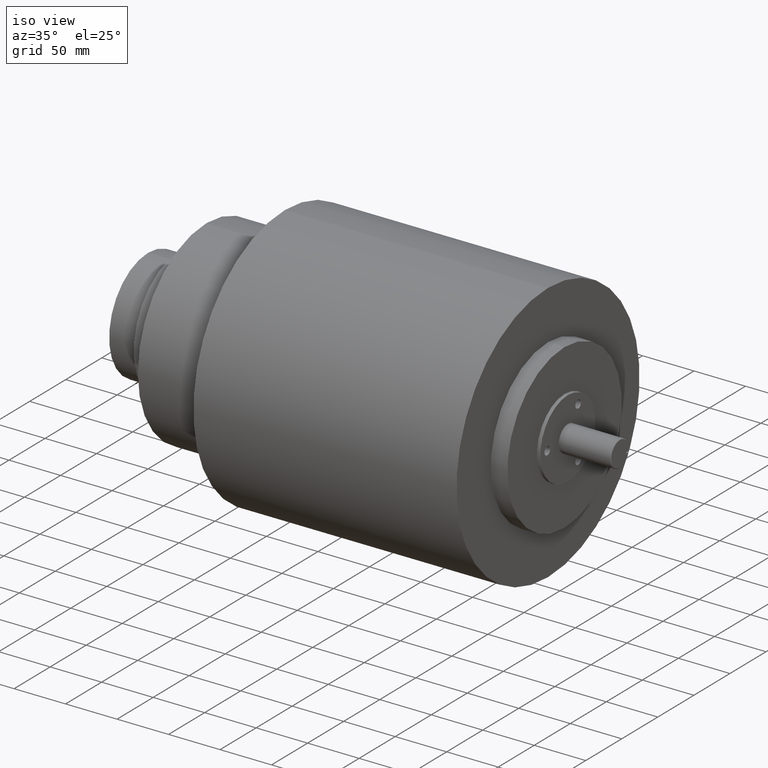
[diagram: clean part render]
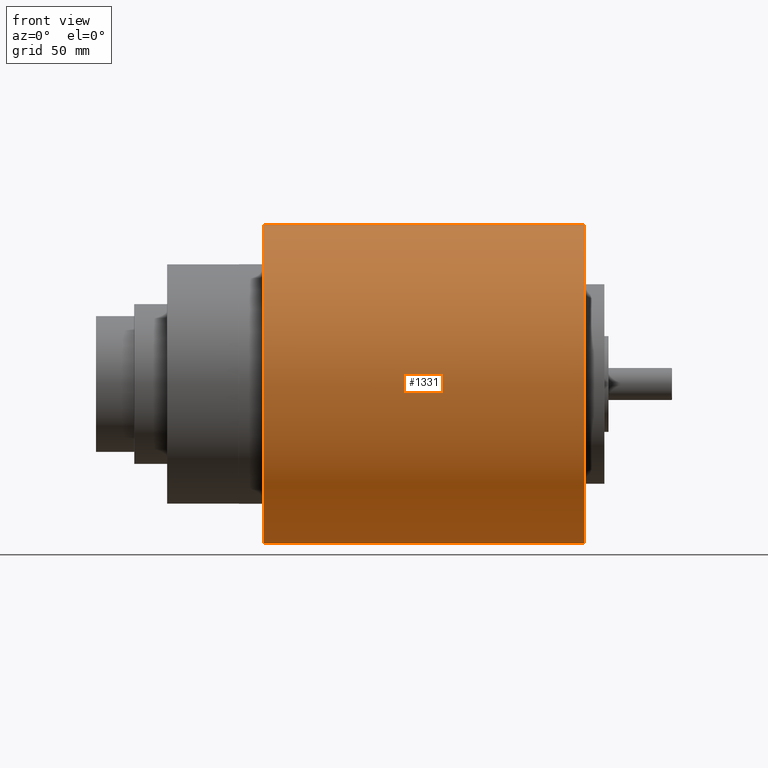
[diagram: tour spotlight — one face highlighted and labeled with its STEP entity id]
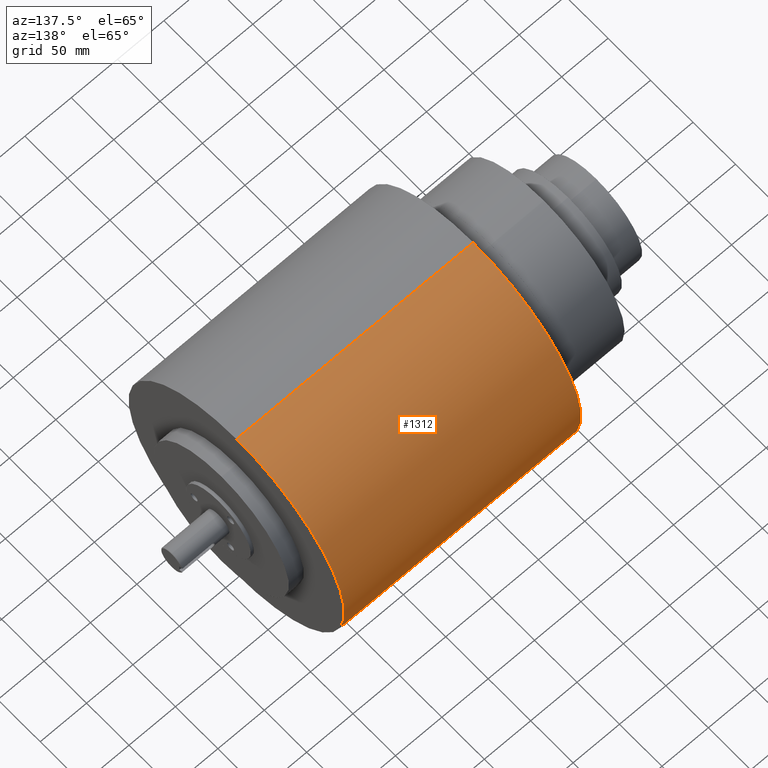
[diagram: tour spotlight — one face highlighted and labeled with its STEP entity id]
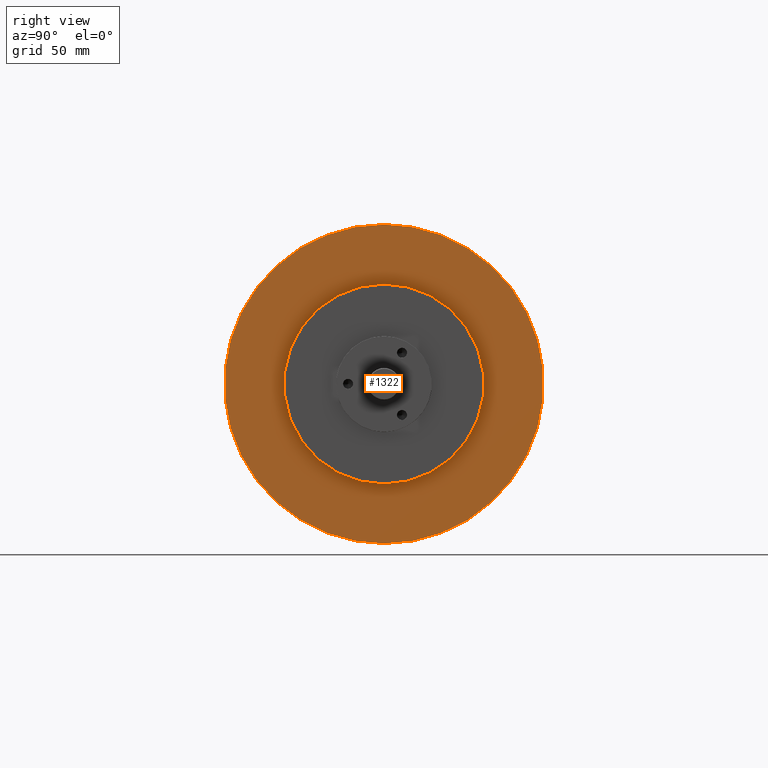
[diagram: tour spotlight — one face highlighted and labeled with its STEP entity id]
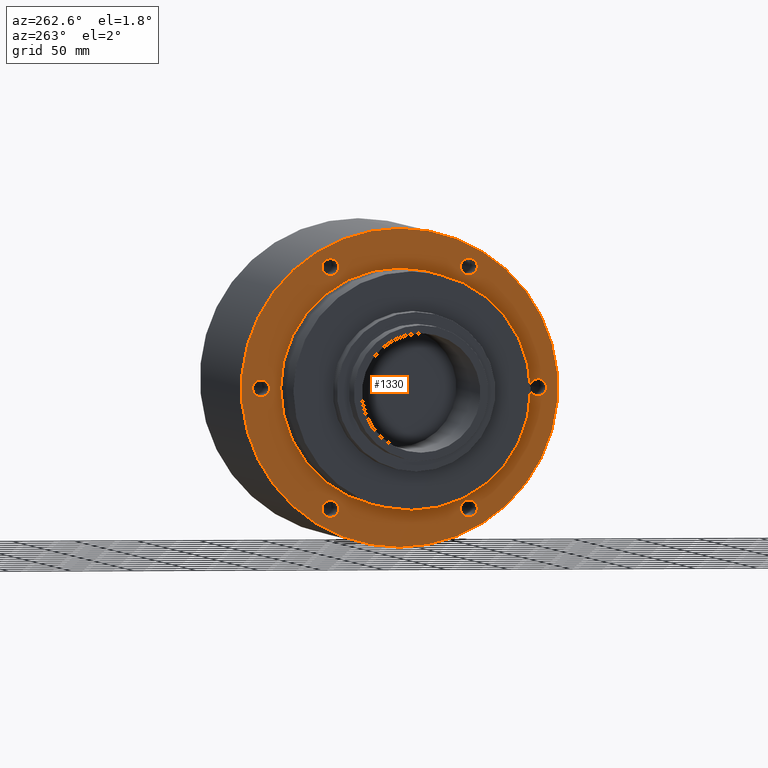
[diagram: tour spotlight — one face highlighted and labeled with its STEP entity id]
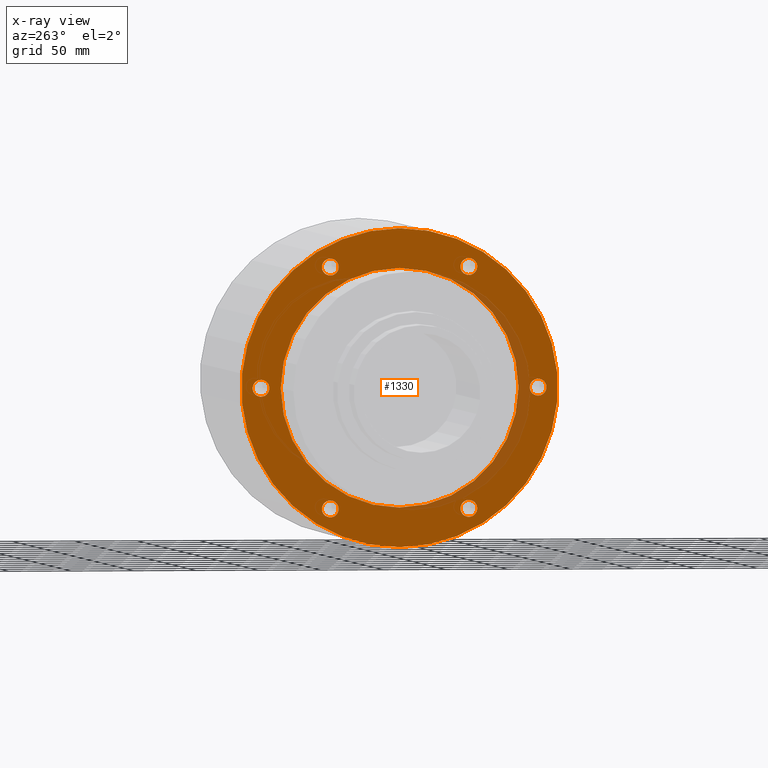
[diagram: x-ray of the same camera — body ghosted, this tour face saturated]
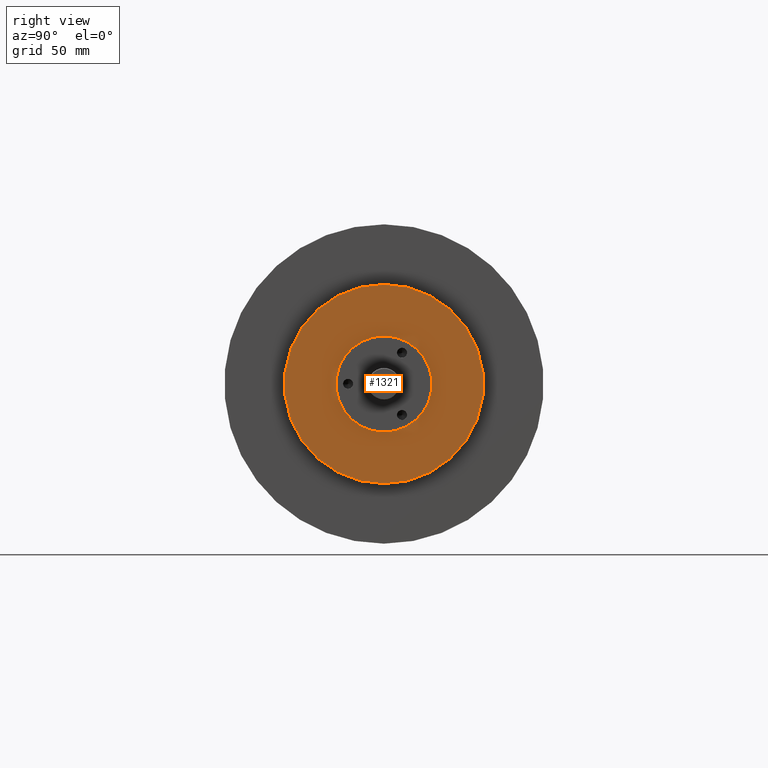
[diagram: tour spotlight — one face highlighted and labeled with its STEP entity id]
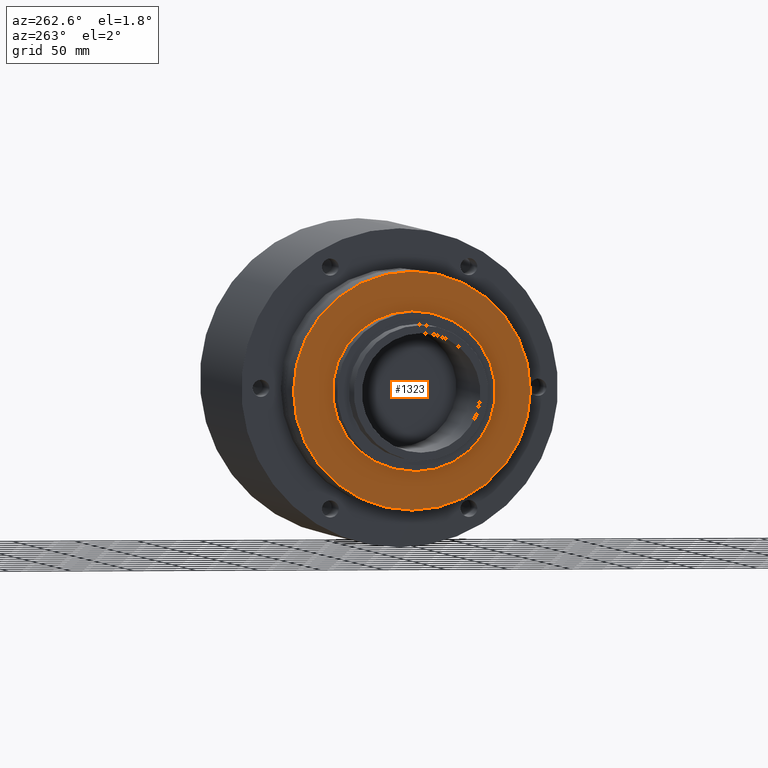
[diagram: tour spotlight — one face highlighted and labeled with its STEP entity id]
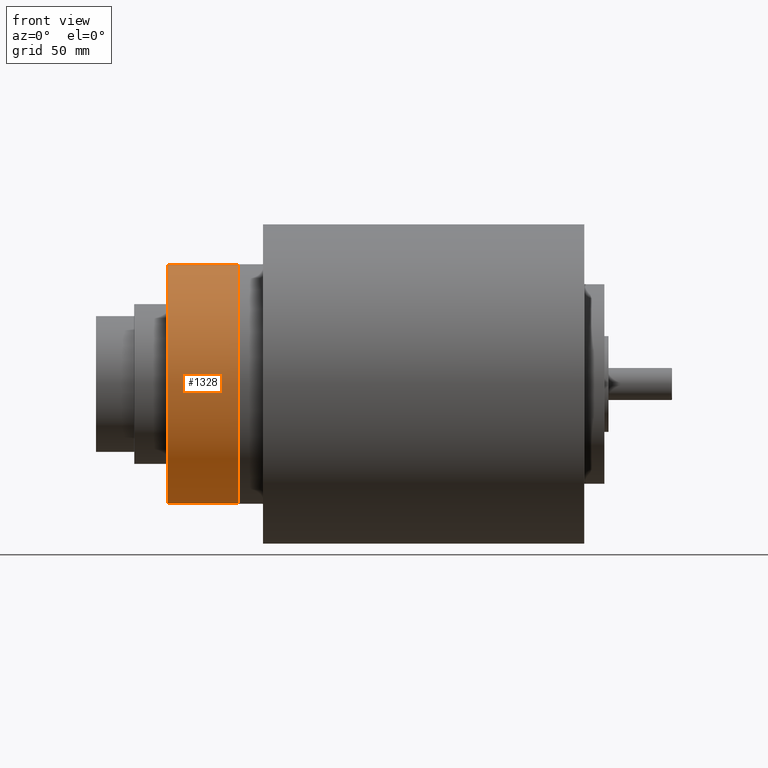
[diagram: tour spotlight — one face highlighted and labeled with its STEP entity id]
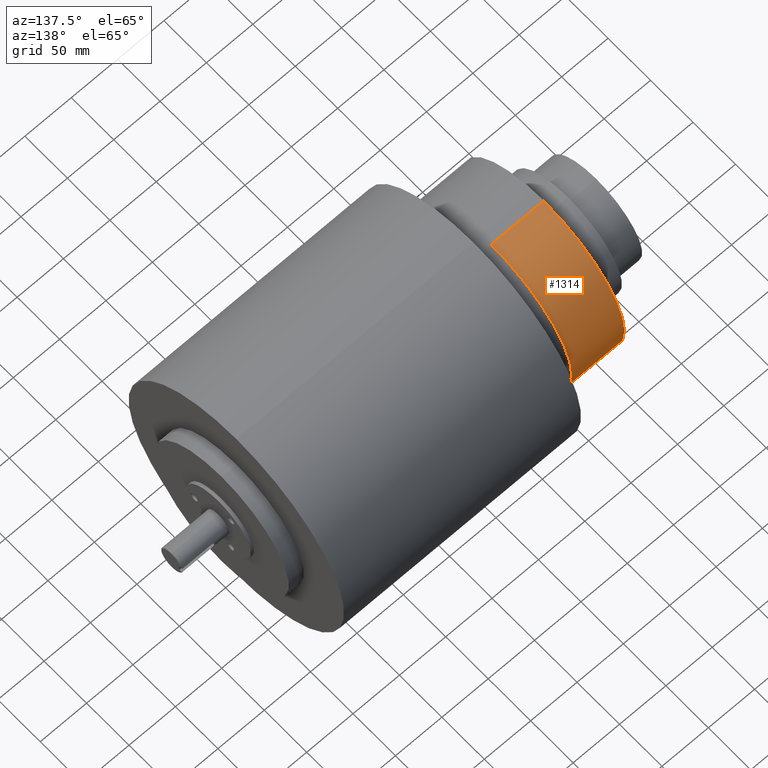
[diagram: tour spotlight — one face highlighted and labeled with its STEP entity id]
A machine part: a face-by-face anatomy tour. The part has 98 B-rep faces; the first image is the clean iso view, then the 8 largest visible faces are spotlighted one at a time (largest first), each with its STEP entity span.

Face 1 — front view, entity #1331. In plain terms, the highlighted cylindrical surface (partial cylindrical patch) has radius 127 mm, axis along (-1, -0, -0).
Definition (entity closure, byte-faithful):
#210 = FACE_OUTER_BOUND ( 'NONE', #559, .T. ) ;
#212 = CYLINDRICAL_SURFACE ( 'NONE', #2640, 5.000000000000000000 ) ;
#296 = CIRCLE ( 'NONE', #2678, 5.000000000000000000 ) ;
#366 = DIRECTION ( 'NONE',  ( 1.000000000000000000, 0.0000000000000000000, 0.0000000000000000000 ) ) ;
#371 = CARTESIAN_POINT ( 'NONE',  ( 5.235000000000000300, 0.0000000000000000000, 0.0000000000000000000 ) ) ;
#373 = DIRECTION ( 'NONE',  ( 0.0000000000000000000, 0.0000000000000000000, -1.000000000000000000 ) ) ;
#559 = EDGE_LOOP ( 'NONE', ( #1501, #1502, #1503, #1504 ) ) ;
#639 = VERTEX_POINT ( 'NONE', #757 ) ;
#640 = VERTEX_POINT ( 'NONE', #758 ) ;
#641 = VERTEX_POINT ( 'NONE', #759 ) ;
#642 = VERTEX_POINT ( 'NONE', #760 ) ;
#757 = CARTESIAN_POINT ( 'NONE',  ( 5.235000000000000300, 0.0000000000000000000, 5.000000000000000000 ) ) ;
#758 = CARTESIAN_POINT ( 'NONE',  ( 5.235000000000000300, 6.123233995736766300E-016, -5.000000000000000000 ) ) ;
#759 = CARTESIAN_POINT ( 'NONE',  ( 15.28500000000000200, 0.0000000000000000000, 5.000000000000000000 ) ) ;
#760 = CARTESIAN_POINT ( 'NONE',  ( 15.28500000000000200, 6.123233995736766300E-016, -5.000000000000000000 ) ) ;
#890 = CARTESIAN_POINT ( 'NONE',  ( 15.28500000000000200, 0.0000000000000000000, 0.0000000000000000000 ) ) ;
#893 = DIRECTION ( 'NONE',  ( -1.000000000000000000, -0.0000000000000000000, -0.0000000000000000000 ) ) ;
#894 = DIRECTION ( 'NONE',  ( 0.0000000000000000000, 0.0000000000000000000, -1.000000000000000000 ) ) ;
#997 = EDGE_CURVE ( 'NONE', #642, #641, #1690, .T. ) ;
#1113 = EDGE_CURVE ( 'NONE', #642, #640, #1846, .T. ) ;
#1118 = EDGE_CURVE ( 'NONE', #641, #639, #1855, .T. ) ;
#1203 = AXIS2_PLACEMENT_3D ( 'NONE', #890, #893, #894 ) ;
#1331 = ADVANCED_FACE ( 'NONE', ( #210 ), #212, .T. ) ;
#1501 = ORIENTED_EDGE ( 'NONE', *, *, #1113, .F. ) ;
#1502 = ORIENTED_EDGE ( 'NONE', *, *, #997, .T. ) ;
#1503 = ORIENTED_EDGE ( 'NONE', *, *, #1118, .T. ) ;
#1504 = ORIENTED_EDGE ( 'NONE', *, *, #2701, .T. ) ;
#1690 = CIRCLE ( 'NONE', #1203, 5.000000000000000000 ) ;
#1846 = LINE ( 'NONE', #2064, #1847 ) ;
#1847 = VECTOR ( 'NONE', #2065, 39.37007874015748100 ) ;
#1851 = VECTOR ( 'NONE', #2078, 39.37007874015748100 ) ;
#1855 = LINE ( 'NONE', #2069, #1851 ) ;
#2064 = CARTESIAN_POINT ( 'NONE',  ( 29.43213562373095400, 6.123233995736766300E-016, -5.000000000000000000 ) ) ;
#2065 = DIRECTION ( 'NONE',  ( -1.000000000000000000, -0.0000000000000000000, -0.0000000000000000000 ) ) ;
#2069 = CARTESIAN_POINT ( 'NONE',  ( 29.43213562373095400, 0.0000000000000000000, 5.000000000000000000 ) ) ;
#2078 = DIRECTION ( 'NONE',  ( -1.000000000000000000, -0.0000000000000000000, -0.0000000000000000000 ) ) ;
#2444 = DIRECTION ( 'NONE',  ( -1.000000000000000000, -0.0000000000000000000, -0.0000000000000000000 ) ) ;
#2447 = DIRECTION ( 'NONE',  ( 0.0000000000000000000, 0.0000000000000000000, 1.000000000000000000 ) ) ;
#2448 = CARTESIAN_POINT ( 'NONE',  ( 29.43213562373095400, 0.0000000000000000000, 0.0000000000000000000 ) ) ;
#2640 = AXIS2_PLACEMENT_3D ( 'NONE', #2448, #2444, #2447 ) ;
#2678 = AXIS2_PLACEMENT_3D ( 'NONE', #371, #366, #373 ) ;
#2701 = EDGE_CURVE ( 'NONE', #639, #640, #296, .T. ) ;

Face 2 — auxiliary view, entity #1312. In plain terms, the highlighted cylindrical surface (partial cylindrical patch) has radius 127 mm, axis along (-1, -0, -0).
Definition (entity closure, byte-faithful):
#111 = CIRCLE ( 'NONE', #2588, 5.000000000000000000 ) ;
#157 = FACE_OUTER_BOUND ( 'NONE', #503, .T. ) ;
#166 = CYLINDRICAL_SURFACE ( 'NONE', #2621, 5.000000000000000000 ) ;
#503 = EDGE_LOOP ( 'NONE', ( #1401, #1402, #1403, #1404 ) ) ;
#639 = VERTEX_POINT ( 'NONE', #757 ) ;
#640 = VERTEX_POINT ( 'NONE', #758 ) ;
#641 = VERTEX_POINT ( 'NONE', #759 ) ;
#642 = VERTEX_POINT ( 'NONE', #760 ) ;
#757 = CARTESIAN_POINT ( 'NONE',  ( 5.235000000000000300, 0.0000000000000000000, 5.000000000000000000 ) ) ;
#758 = CARTESIAN_POINT ( 'NONE',  ( 5.235000000000000300, 6.123233995736766300E-016, -5.000000000000000000 ) ) ;
#759 = CARTESIAN_POINT ( 'NONE',  ( 15.28500000000000200, 0.0000000000000000000, 5.000000000000000000 ) ) ;
#760 = CARTESIAN_POINT ( 'NONE',  ( 15.28500000000000200, 6.123233995736766300E-016, -5.000000000000000000 ) ) ;
#1113 = EDGE_CURVE ( 'NONE', #642, #640, #1846, .T. ) ;
#1118 = EDGE_CURVE ( 'NONE', #641, #639, #1855, .T. ) ;
#1174 = EDGE_CURVE ( 'NONE', #640, #639, #1927, .T. ) ;
#1188 = EDGE_CURVE ( 'NONE', #641, #642, #111, .T. ) ;
#1312 = ADVANCED_FACE ( 'NONE', ( #157 ), #166, .T. ) ;
#1401 = ORIENTED_EDGE ( 'NONE', *, *, #1188, .T. ) ;
#1402 = ORIENTED_EDGE ( 'NONE', *, *, #1113, .T. ) ;
#1403 = ORIENTED_EDGE ( 'NONE', *, *, #1174, .T. ) ;
#1404 = ORIENTED_EDGE ( 'NONE', *, *, #1118, .F. ) ;
#1846 = LINE ( 'NONE', #2064, #1847 ) ;
#1847 = VECTOR ( 'NONE', #2065, 39.37007874015748100 ) ;
#1851 = VECTOR ( 'NONE', #2078, 39.37007874015748100 ) ;
#1855 = LINE ( 'NONE', #2069, #1851 ) ;
#1927 = CIRCLE ( 'NONE', #2573, 5.000000000000000000 ) ;
#2064 = CARTESIAN_POINT ( 'NONE',  ( 29.43213562373095400, 6.123233995736766300E-016, -5.000000000000000000 ) ) ;
#2065 = DIRECTION ( 'NONE',  ( -1.000000000000000000, -0.0000000000000000000, -0.0000000000000000000 ) ) ;
#2069 = CARTESIAN_POINT ( 'NONE',  ( 29.43213562373095400, 0.0000000000000000000, 5.000000000000000000 ) ) ;
#2078 = DIRECTION ( 'NONE',  ( -1.000000000000000000, -0.0000000000000000000, -0.0000000000000000000 ) ) ;
#2253 = CARTESIAN_POINT ( 'NONE',  ( 5.235000000000000300, 0.0000000000000000000, 0.0000000000000000000 ) ) ;
#2254 = DIRECTION ( 'NONE',  ( 1.000000000000000000, 0.0000000000000000000, 0.0000000000000000000 ) ) ;
#2255 = DIRECTION ( 'NONE',  ( 0.0000000000000000000, 0.0000000000000000000, -1.000000000000000000 ) ) ;
#2295 = CARTESIAN_POINT ( 'NONE',  ( 15.28500000000000200, 0.0000000000000000000, 0.0000000000000000000 ) ) ;
#2296 = DIRECTION ( 'NONE',  ( -1.000000000000000000, -0.0000000000000000000, -0.0000000000000000000 ) ) ;
#2297 = DIRECTION ( 'NONE',  ( 0.0000000000000000000, 0.0000000000000000000, -1.000000000000000000 ) ) ;
#2383 = DIRECTION ( 'NONE',  ( 0.0000000000000000000, 0.0000000000000000000, 1.000000000000000000 ) ) ;
#2387 = DIRECTION ( 'NONE',  ( -1.000000000000000000, -0.0000000000000000000, -0.0000000000000000000 ) ) ;
#2388 = CARTESIAN_POINT ( 'NONE',  ( 29.43213562373095400, 0.0000000000000000000, 0.0000000000000000000 ) ) ;
#2573 = AXIS2_PLACEMENT_3D ( 'NONE', #2253, #2254, #2255 ) ;
#2588 = AXIS2_PLACEMENT_3D ( 'NONE', #2295, #2296, #2297 ) ;
#2621 = AXIS2_PLACEMENT_3D ( 'NONE', #2388, #2387, #2383 ) ;

Face 3 — right view, entity #1322. In plain terms, the highlighted planar face has unit normal (1, 0, 0).
Definition (entity closure, byte-faithful):
#179 = FACE_OUTER_BOUND ( 'NONE', #558, .T. ) ;
#181 = FACE_BOUND ( 'NONE', #548, .T. ) ;
#548 = EDGE_LOOP ( 'NONE', ( #1453, #1454 ) ) ;
#558 = EDGE_LOOP ( 'NONE', ( #1455, #1456 ) ) ;
#643 = VERTEX_POINT ( 'NONE', #761 ) ;
#644 = VERTEX_POINT ( 'NONE', #762 ) ;
#667 = VERTEX_POINT ( 'NONE', #785 ) ;
#668 = VERTEX_POINT ( 'NONE', #786 ) ;
#761 = CARTESIAN_POINT ( 'NONE',  ( 15.29000000000000300, 6.120172378738897400E-016, 4.995000000000001000 ) ) ;
#762 = CARTESIAN_POINT ( 'NONE',  ( 15.29000000000000300, 0.0000000000000000000, -4.995000000000001000 ) ) ;
#785 = CARTESIAN_POINT ( 'NONE',  ( 15.29000000000000300, 3.833144481331215700E-016, 3.130000000000000300 ) ) ;
#786 = CARTESIAN_POINT ( 'NONE',  ( 15.29000000000000300, 0.0000000000000000000, -3.130000000000000300 ) ) ;
#974 = CARTESIAN_POINT ( 'NONE',  ( 15.29000000000000300, 0.0000000000000000000, 0.0000000000000000000 ) ) ;
#975 = DIRECTION ( 'NONE',  ( -1.000000000000000000, -0.0000000000000000000, -0.0000000000000000000 ) ) ;
#976 = DIRECTION ( 'NONE',  ( 0.0000000000000000000, 0.0000000000000000000, -1.000000000000000000 ) ) ;
#1025 = EDGE_CURVE ( 'NONE', #668, #667, #1719, .T. ) ;
#1148 = EDGE_CURVE ( 'NONE', #667, #668, #1899, .T. ) ;
#1150 = EDGE_CURVE ( 'NONE', #643, #644, #1902, .T. ) ;
#1178 = EDGE_CURVE ( 'NONE', #644, #643, #1932, .T. ) ;
#1232 = AXIS2_PLACEMENT_3D ( 'NONE', #974, #975, #976 ) ;
#1322 = ADVANCED_FACE ( 'NONE', ( #181, #179 ), #2410, .T. ) ;
#1453 = ORIENTED_EDGE ( 'NONE', *, *, #1025, .T. ) ;
#1454 = ORIENTED_EDGE ( 'NONE', *, *, #1148, .T. ) ;
#1455 = ORIENTED_EDGE ( 'NONE', *, *, #1178, .T. ) ;
#1456 = ORIENTED_EDGE ( 'NONE', *, *, #1150, .T. ) ;
#1719 = CIRCLE ( 'NONE', #1232, 3.130000000000000300 ) ;
#1899 = CIRCLE ( 'NONE', #2556, 3.130000000000000300 ) ;
#1902 = CIRCLE ( 'NONE', #2558, 4.995000000000001000 ) ;
#1932 = CIRCLE ( 'NONE', #2577, 4.995000000000001000 ) ;
#2174 = CARTESIAN_POINT ( 'NONE',  ( 15.29000000000000300, 0.0000000000000000000, 0.0000000000000000000 ) ) ;
#2181 = CARTESIAN_POINT ( 'NONE',  ( 15.29000000000000300, 0.0000000000000000000, 0.0000000000000000000 ) ) ;
#2182 = DIRECTION ( 'NONE',  ( -1.000000000000000000, -0.0000000000000000000, -0.0000000000000000000 ) ) ;
#2183 = DIRECTION ( 'NONE',  ( 0.0000000000000000000, 0.0000000000000000000, -1.000000000000000000 ) ) ;
#2187 = DIRECTION ( 'NONE',  ( 1.000000000000000000, 0.0000000000000000000, 0.0000000000000000000 ) ) ;
#2188 = DIRECTION ( 'NONE',  ( 0.0000000000000000000, 0.0000000000000000000, -1.000000000000000000 ) ) ;
#2265 = CARTESIAN_POINT ( 'NONE',  ( 15.29000000000000300, 0.0000000000000000000, 0.0000000000000000000 ) ) ;
#2266 = DIRECTION ( 'NONE',  ( 1.000000000000000000, 0.0000000000000000000, 0.0000000000000000000 ) ) ;
#2267 = DIRECTION ( 'NONE',  ( 0.0000000000000000000, 0.0000000000000000000, -1.000000000000000000 ) ) ;
#2410 = PLANE ( 'NONE',  #2631 ) ;
#2417 = CARTESIAN_POINT ( 'NONE',  ( 15.29000000000000300, 0.0000000000000000000, 0.0000000000000000000 ) ) ;
#2423 = DIRECTION ( 'NONE',  ( 1.000000000000000000, 0.0000000000000000000, 0.0000000000000000000 ) ) ;
#2424 = DIRECTION ( 'NONE',  ( 0.0000000000000000000, 0.0000000000000000000, -1.000000000000000000 ) ) ;
#2556 = AXIS2_PLACEMENT_3D ( 'NONE', #2174, #2182, #2183 ) ;
#2558 = AXIS2_PLACEMENT_3D ( 'NONE', #2181, #2187, #2188 ) ;
#2577 = AXIS2_PLACEMENT_3D ( 'NONE', #2265, #2266, #2267 ) ;
#2631 = AXIS2_PLACEMENT_3D ( 'NONE', #2417, #2423, #2424 ) ;

Face 4 — auxiliary view, entity #1330. An x-ray twin of the same camera follows (body ghosted, this face saturated) — the face is partly hidden behind the body. In plain terms, the highlighted planar face has unit normal (1, 0, 0).
Definition (entity closure, byte-faithful):
#8 = CARTESIAN_POINT ( 'NONE',  ( 5.230000000000000400, -2.187500000000044400, 3.788861141556893600 ) ) ;
#101 = CIRCLE ( 'NONE', #2579, 3.755000000000000300 ) ;
#106 = CIRCLE ( 'NONE', #2583, 4.995000000000001000 ) ;
#188 = FACE_BOUND ( 'NONE', #575, .T. ) ;
#189 = FACE_OUTER_BOUND ( 'NONE', #564, .T. ) ;
#199 = FACE_BOUND ( 'NONE', #574, .T. ) ;
#203 = FACE_BOUND ( 'NONE', #571, .T. ) ;
#204 = FACE_BOUND ( 'NONE', #576, .T. ) ;
#205 = FACE_BOUND ( 'NONE', #572, .T. ) ;
#206 = FACE_BOUND ( 'NONE', #577, .T. ) ;
#207 = FACE_BOUND ( 'NONE', #573, .T. ) ;
#400 = DIRECTION ( 'NONE',  ( 0.0000000000000000000, 0.0000000000000000000, 1.000000000000000000 ) ) ;
#401 = DIRECTION ( 'NONE',  ( -1.000000000000000000, -0.0000000000000000000, -0.0000000000000000000 ) ) ;
#564 = EDGE_LOOP ( 'NONE', ( #1485, #1486 ) ) ;
#571 = EDGE_LOOP ( 'NONE', ( #1487, #1488 ) ) ;
#572 = EDGE_LOOP ( 'NONE', ( #1489, #1490 ) ) ;
#573 = EDGE_LOOP ( 'NONE', ( #1491, #1492 ) ) ;
#574 = EDGE_LOOP ( 'NONE', ( #1493, #1494 ) ) ;
#575 = EDGE_LOOP ( 'NONE', ( #1495, #1496 ) ) ;
#576 = EDGE_LOOP ( 'NONE', ( #1497, #1498 ) ) ;
#577 = EDGE_LOOP ( 'NONE', ( #1499, #1500 ) ) ;
#633 = VERTEX_POINT ( 'NONE', #751 ) ;
#634 = VERTEX_POINT ( 'NONE', #752 ) ;
#637 = VERTEX_POINT ( 'NONE', #755 ) ;
#638 = VERTEX_POINT ( 'NONE', #756 ) ;
#694 = VERTEX_POINT ( 'NONE', #812 ) ;
#695 = VERTEX_POINT ( 'NONE', #813 ) ;
#699 = VERTEX_POINT ( 'NONE', #817 ) ;
#700 = VERTEX_POINT ( 'NONE', #818 ) ;
#704 = VERTEX_POINT ( 'NONE', #822 ) ;
#705 = VERTEX_POINT ( 'NONE', #823 ) ;
#709 = VERTEX_POINT ( 'NONE', #827 ) ;
#710 = VERTEX_POINT ( 'NONE', #828 ) ;
#714 = VERTEX_POINT ( 'NONE', #832 ) ;
#715 = VERTEX_POINT ( 'NONE', #833 ) ;
#719 = VERTEX_POINT ( 'NONE', #837 ) ;
#720 = VERTEX_POINT ( 'NONE', #838 ) ;
#751 = CARTESIAN_POINT ( 'NONE',  ( 5.230000000000000400, 4.598548730798311800E-016, 3.755000000000000300 ) ) ;
#752 = CARTESIAN_POINT ( 'NONE',  ( 5.230000000000000400, 0.0000000000000000000, -3.755000000000000300 ) ) ;
#755 = CARTESIAN_POINT ( 'NONE',  ( 5.230000000000000400, 6.120172378738897400E-016, 4.995000000000001000 ) ) ;
#756 = CARTESIAN_POINT ( 'NONE',  ( 5.230000000000000400, 0.0000000000000000000, -4.995000000000001000 ) ) ;
#812 = CARTESIAN_POINT ( 'NONE',  ( 5.230000000000000400, -2.187500000000044400, 3.523261141556893500 ) ) ;
#813 = CARTESIAN_POINT ( 'NONE',  ( 5.230000000000000400, -2.187500000000044400, 4.054461141556894100 ) ) ;
#817 = CARTESIAN_POINT ( 'NONE',  ( 5.230000000000000400, 2.187499999999964900, 3.523261141556939700 ) ) ;
#818 = CARTESIAN_POINT ( 'NONE',  ( 5.230000000000000400, 2.187499999999964900, 4.054461141556939400 ) ) ;
#822 = CARTESIAN_POINT ( 'NONE',  ( 5.230000000000000400, 4.375000000000000000, -0.2656000000000000600 ) ) ;
#823 = CARTESIAN_POINT ( 'NONE',  ( 5.230000000000000400, 4.375000000000000000, 0.2656000000000000000 ) ) ;
#827 = CARTESIAN_POINT ( 'NONE',  ( 5.230000000000000400, 2.187500000000018200, -4.054461141556909200 ) ) ;
#828 = CARTESIAN_POINT ( 'NONE',  ( 5.230000000000000400, 2.187500000000018200, -3.523261141556909500 ) ) ;
#832 = CARTESIAN_POINT ( 'NONE',  ( 5.230000000000000400, -2.187499999999991600, -4.054461141556924300 ) ) ;
#833 = CARTESIAN_POINT ( 'NONE',  ( 5.230000000000000400, -2.187499999999991600, -3.523261141556924200 ) ) ;
#837 = CARTESIAN_POINT ( 'NONE',  ( 5.230000000000000400, -4.375000000000000000, -0.2656000000000000600 ) ) ;
#838 = CARTESIAN_POINT ( 'NONE',  ( 5.230000000000000400, -4.375000000000000000, 0.2656000000000000000 ) ) ;
#898 = CARTESIAN_POINT ( 'NONE',  ( 5.230000000000000400, -4.375000000000000000, 0.0000000000000000000 ) ) ;
#899 = DIRECTION ( 'NONE',  ( -1.000000000000000000, -0.0000000000000000000, -0.0000000000000000000 ) ) ;
#900 = DIRECTION ( 'NONE',  ( 0.0000000000000000000, 0.0000000000000000000, 1.000000000000000000 ) ) ;
#904 = CARTESIAN_POINT ( 'NONE',  ( 5.230000000000000400, -2.187499999999991600, -3.788861141556924200 ) ) ;
#905 = DIRECTION ( 'NONE',  ( -1.000000000000000000, -0.0000000000000000000, -0.0000000000000000000 ) ) ;
#906 = DIRECTION ( 'NONE',  ( 0.0000000000000000000, 0.0000000000000000000, 1.000000000000000000 ) ) ;
#907 = CARTESIAN_POINT ( 'NONE',  ( 5.230000000000000400, 4.375000000000000000, 0.0000000000000000000 ) ) ;
#908 = DIRECTION ( 'NONE',  ( -1.000000000000000000, -0.0000000000000000000, -0.0000000000000000000 ) ) ;
#909 = DIRECTION ( 'NONE',  ( 0.0000000000000000000, 0.0000000000000000000, 1.000000000000000000 ) ) ;
#913 = CARTESIAN_POINT ( 'NONE',  ( 5.230000000000000400, 2.187500000000018200, -3.788861141556909600 ) ) ;
#914 = DIRECTION ( 'NONE',  ( -1.000000000000000000, -0.0000000000000000000, -0.0000000000000000000 ) ) ;
#915 = DIRECTION ( 'NONE',  ( 0.0000000000000000000, 0.0000000000000000000, 1.000000000000000000 ) ) ;
#916 = CARTESIAN_POINT ( 'NONE',  ( 5.230000000000000400, 0.0000000000000000000, 0.0000000000000000000 ) ) ;
#919 = DIRECTION ( 'NONE',  ( 1.000000000000000000, 0.0000000000000000000, 0.0000000000000000000 ) ) ;
#920 = DIRECTION ( 'NONE',  ( 0.0000000000000000000, 0.0000000000000000000, -1.000000000000000000 ) ) ;
#924 = CARTESIAN_POINT ( 'NONE',  ( 5.230000000000000400, -2.187500000000044400, 3.788861141556893600 ) ) ;
#925 = DIRECTION ( 'NONE',  ( -1.000000000000000000, -0.0000000000000000000, -0.0000000000000000000 ) ) ;
#926 = DIRECTION ( 'NONE',  ( 0.0000000000000000000, 0.0000000000000000000, 1.000000000000000000 ) ) ;
#930 = CARTESIAN_POINT ( 'NONE',  ( 5.230000000000000400, 2.187499999999964900, 3.788861141556939800 ) ) ;
#931 = DIRECTION ( 'NONE',  ( -1.000000000000000000, -0.0000000000000000000, -0.0000000000000000000 ) ) ;
#932 = DIRECTION ( 'NONE',  ( 0.0000000000000000000, 0.0000000000000000000, 1.000000000000000000 ) ) ;
#936 = CARTESIAN_POINT ( 'NONE',  ( 5.230000000000000400, 0.0000000000000000000, 0.0000000000000000000 ) ) ;
#937 = DIRECTION ( 'NONE',  ( -1.000000000000000000, -0.0000000000000000000, -0.0000000000000000000 ) ) ;
#938 = DIRECTION ( 'NONE',  ( 0.0000000000000000000, 0.0000000000000000000, -1.000000000000000000 ) ) ;
#999 = EDGE_CURVE ( 'NONE', #720, #719, #1692, .T. ) ;
#1001 = EDGE_CURVE ( 'NONE', #715, #714, #1694, .T. ) ;
#1002 = EDGE_CURVE ( 'NONE', #705, #704, #1695, .T. ) ;
#1004 = EDGE_CURVE ( 'NONE', #710, #709, #1698, .T. ) ;
#1006 = EDGE_CURVE ( 'NONE', #634, #633, #1699, .T. ) ;
#1008 = EDGE_CURVE ( 'NONE', #695, #694, #1701, .T. ) ;
#1010 = EDGE_CURVE ( 'NONE', #700, #699, #1703, .T. ) ;
#1012 = EDGE_CURVE ( 'NONE', #638, #637, #1705, .T. ) ;
#1057 = EDGE_CURVE ( 'NONE', #694, #695, #1761, .T. ) ;
#1064 = EDGE_CURVE ( 'NONE', #709, #710, #1773, .T. ) ;
#1069 = EDGE_CURVE ( 'NONE', #704, #705, #1782, .T. ) ;
#1071 = EDGE_CURVE ( 'NONE', #699, #700, #1785, .T. ) ;
#1088 = EDGE_CURVE ( 'NONE', #714, #715, #1812, .T. ) ;
#1154 = EDGE_CURVE ( 'NONE', #719, #720, #1907, .T. ) ;
#1180 = EDGE_CURVE ( 'NONE', #633, #634, #101, .T. ) ;
#1184 = EDGE_CURVE ( 'NONE', #637, #638, #106, .T. ) ;
#1210 = AXIS2_PLACEMENT_3D ( 'NONE', #898, #899, #900 ) ;
#1212 = AXIS2_PLACEMENT_3D ( 'NONE', #904, #905, #906 ) ;
#1213 = AXIS2_PLACEMENT_3D ( 'NONE', #907, #908, #909 ) ;
#1215 = AXIS2_PLACEMENT_3D ( 'NONE', #913, #914, #915 ) ;
#1216 = AXIS2_PLACEMENT_3D ( 'NONE', #924, #925, #926 ) ;
#1218 = AXIS2_PLACEMENT_3D ( 'NONE', #916, #919, #920 ) ;
#1220 = AXIS2_PLACEMENT_3D ( 'NONE', #930, #931, #932 ) ;
#1222 = AXIS2_PLACEMENT_3D ( 'NONE', #936, #937, #938 ) ;
#1259 = AXIS2_PLACEMENT_3D ( 'NONE', #8, #401, #400 ) ;
#1262 = AXIS2_PLACEMENT_3D ( 'NONE', #1938, #1944, #1945 ) ;
#1264 = AXIS2_PLACEMENT_3D ( 'NONE', #1948, #1957, #1958 ) ;
#1265 = AXIS2_PLACEMENT_3D ( 'NONE', #1951, #1961, #1962 ) ;
#1268 = AXIS2_PLACEMENT_3D ( 'NONE', #1993, #2001, #2002 ) ;
#1330 = ADVANCED_FACE ( 'NONE', ( #189, #203, #205, #207, #199, #188, #204, #206 ), #2450, .F. ) ;
#1485 = ORIENTED_EDGE ( 'NONE', *, *, #1012, .T. ) ;
#1486 = ORIENTED_EDGE ( 'NONE', *, *, #1184, .T. ) ;
#1487 = ORIENTED_EDGE ( 'NONE', *, *, #1006, .T. ) ;
#1488 = ORIENTED_EDGE ( 'NONE', *, *, #1180, .T. ) ;
#1489 = ORIENTED_EDGE ( 'NONE', *, *, #1008, .F. ) ;
#1490 = ORIENTED_EDGE ( 'NONE', *, *, #1057, .F. ) ;
#1491 = ORIENTED_EDGE ( 'NONE', *, *, #1010, .F. ) ;
#1492 = ORIENTED_EDGE ( 'NONE', *, *, #1071, .F. ) ;
#1493 = ORIENTED_EDGE ( 'NONE', *, *, #1002, .F. ) ;
#1494 = ORIENTED_EDGE ( 'NONE', *, *, #1069, .F. ) ;
#1495 = ORIENTED_EDGE ( 'NONE', *, *, #1004, .F. ) ;
#1496 = ORIENTED_EDGE ( 'NONE', *, *, #1064, .F. ) ;
#1497 = ORIENTED_EDGE ( 'NONE', *, *, #1001, .F. ) ;
#1498 = ORIENTED_EDGE ( 'NONE', *, *, #1088, .F. ) ;
#1499 = ORIENTED_EDGE ( 'NONE', *, *, #999, .F. ) ;
#1500 = ORIENTED_EDGE ( 'NONE', *, *, #1154, .F. ) ;
#1692 = CIRCLE ( 'NONE', #1210, 0.2656000000000000000 ) ;
#1694 = CIRCLE ( 'NONE', #1212, 0.2656000000000000000 ) ;
#1695 = CIRCLE ( 'NONE', #1213, 0.2656000000000000000 ) ;
#1698 = CIRCLE ( 'NONE', #1215, 0.2656000000000000000 ) ;
#1699 = CIRCLE ( 'NONE', #1218, 3.755000000000000300 ) ;
#1701 = CIRCLE ( 'NONE', #1216, 0.2656000000000000000 ) ;
#1703 = CIRCLE ( 'NONE', #1220, 0.2655999999999995000 ) ;
#1705 = CIRCLE ( 'NONE', #1222, 4.995000000000001000 ) ;
#1761 = CIRCLE ( 'NONE', #1259, 0.2656000000000000000 ) ;
#1773 = CIRCLE ( 'NONE', #1262, 0.2656000000000000000 ) ;
#1782 = CIRCLE ( 'NONE', #1264, 0.2656000000000000000 ) ;
#1785 = CIRCLE ( 'NONE', #1265, 0.2655999999999995000 ) ;
#1812 = CIRCLE ( 'NONE', #1268, 0.2656000000000000000 ) ;
#1907 = CIRCLE ( 'NONE', #2560, 0.2656000000000000000 ) ;
#1938 = CARTESIAN_POINT ( 'NONE',  ( 5.230000000000000400, 2.187500000000018200, -3.788861141556909600 ) ) ;
#1944 = DIRECTION ( 'NONE',  ( -1.000000000000000000, -0.0000000000000000000, -0.0000000000000000000 ) ) ;
#1945 = DIRECTION ( 'NONE',  ( 0.0000000000000000000, 0.0000000000000000000, 1.000000000000000000 ) ) ;
#1948 = CARTESIAN_POINT ( 'NONE',  ( 5.230000000000000400, 4.375000000000000000, 0.0000000000000000000 ) ) ;
#1951 = CARTESIAN_POINT ( 'NONE',  ( 5.230000000000000400, 2.187499999999964900, 3.788861141556939800 ) ) ;
#1957 = DIRECTION ( 'NONE',  ( -1.000000000000000000, -0.0000000000000000000, -0.0000000000000000000 ) ) ;
#1958 = DIRECTION ( 'NONE',  ( 0.0000000000000000000, 0.0000000000000000000, 1.000000000000000000 ) ) ;
#1961 = DIRECTION ( 'NONE',  ( -1.000000000000000000, -0.0000000000000000000, -0.0000000000000000000 ) ) ;
#1962 = DIRECTION ( 'NONE',  ( 0.0000000000000000000, 0.0000000000000000000, 1.000000000000000000 ) ) ;
#1993 = CARTESIAN_POINT ( 'NONE',  ( 5.230000000000000400, -2.187499999999991600, -3.788861141556924200 ) ) ;
#2001 = DIRECTION ( 'NONE',  ( -1.000000000000000000, -0.0000000000000000000, -0.0000000000000000000 ) ) ;
#2002 = DIRECTION ( 'NONE',  ( 0.0000000000000000000, 0.0000000000000000000, 1.000000000000000000 ) ) ;
#2186 = CARTESIAN_POINT ( 'NONE',  ( 5.230000000000000400, -4.375000000000000000, 0.0000000000000000000 ) ) ;
#2197 = DIRECTION ( 'NONE',  ( -1.000000000000000000, -0.0000000000000000000, -0.0000000000000000000 ) ) ;
#2198 = DIRECTION ( 'NONE',  ( 0.0000000000000000000, 0.0000000000000000000, 1.000000000000000000 ) ) ;
#2271 = CARTESIAN_POINT ( 'NONE',  ( 5.230000000000000400, 0.0000000000000000000, 0.0000000000000000000 ) ) ;
#2272 = DIRECTION ( 'NONE',  ( 1.000000000000000000, 0.0000000000000000000, 0.0000000000000000000 ) ) ;
#2273 = DIRECTION ( 'NONE',  ( 0.0000000000000000000, 0.0000000000000000000, -1.000000000000000000 ) ) ;
#2283 = CARTESIAN_POINT ( 'NONE',  ( 5.230000000000000400, 0.0000000000000000000, 0.0000000000000000000 ) ) ;
#2284 = DIRECTION ( 'NONE',  ( -1.000000000000000000, -0.0000000000000000000, -0.0000000000000000000 ) ) ;
#2285 = DIRECTION ( 'NONE',  ( 0.0000000000000000000, 0.0000000000000000000, -1.000000000000000000 ) ) ;
#2449 = CARTESIAN_POINT ( 'NONE',  ( 5.230000000000000400, 0.0000000000000000000, 0.0000000000000000000 ) ) ;
#2450 = PLANE ( 'NONE',  #2639 ) ;
#2451 = DIRECTION ( 'NONE',  ( 1.000000000000000000, 0.0000000000000000000, 0.0000000000000000000 ) ) ;
#2452 = DIRECTION ( 'NONE',  ( 0.0000000000000000000, 0.0000000000000000000, -1.000000000000000000 ) ) ;
#2560 = AXIS2_PLACEMENT_3D ( 'NONE', #2186, #2197, #2198 ) ;
#2579 = AXIS2_PLACEMENT_3D ( 'NONE', #2271, #2272, #2273 ) ;
#2583 = AXIS2_PLACEMENT_3D ( 'NONE', #2283, #2284, #2285 ) ;
#2639 = AXIS2_PLACEMENT_3D ( 'NONE', #2449, #2451, #2452 ) ;

Face 5 — right view, entity #1321. In plain terms, the highlighted planar face has unit normal (1, 0, 0).
Definition (entity closure, byte-faithful):
#79 = DIRECTION ( 'NONE',  ( 0.0000000000000000000, 0.0000000000000000000, -1.000000000000000000 ) ) ;
#80 = DIRECTION ( 'NONE',  ( -1.000000000000000000, -0.0000000000000000000, -0.0000000000000000000 ) ) ;
#81 = CARTESIAN_POINT ( 'NONE',  ( 15.92000000000000300, 0.0000000000000000000, 0.0000000000000000000 ) ) ;
#91 = CARTESIAN_POINT ( 'NONE',  ( 15.92000000000000300, 0.0000000000000000000, 0.0000000000000000000 ) ) ;
#92 = DIRECTION ( 'NONE',  ( 1.000000000000000000, 0.0000000000000000000, 0.0000000000000000000 ) ) ;
#93 = DIRECTION ( 'NONE',  ( 0.0000000000000000000, 0.0000000000000000000, -1.000000000000000000 ) ) ;
#183 = FACE_OUTER_BOUND ( 'NONE', #556, .T. ) ;
#185 = FACE_BOUND ( 'NONE', #547, .T. ) ;
#547 = EDGE_LOOP ( 'NONE', ( #1449, #1450 ) ) ;
#556 = EDGE_LOOP ( 'NONE', ( #1451, #1452 ) ) ;
#671 = VERTEX_POINT ( 'NONE', #789 ) ;
#672 = VERTEX_POINT ( 'NONE', #790 ) ;
#675 = VERTEX_POINT ( 'NONE', #793 ) ;
#676 = VERTEX_POINT ( 'NONE', #794 ) ;
#789 = CARTESIAN_POINT ( 'NONE',  ( 15.92000000000000300, 3.823959630337610400E-016, 3.120000000000000100 ) ) ;
#790 = CARTESIAN_POINT ( 'NONE',  ( 15.92000000000000300, 0.0000000000000000000, -3.120000000000000100 ) ) ;
#793 = CARTESIAN_POINT ( 'NONE',  ( 15.92000000000000300, 1.843093432716766800E-016, 1.505000000000000100 ) ) ;
#794 = CARTESIAN_POINT ( 'NONE',  ( 15.92000000000000300, 0.0000000000000000000, -1.505000000000000100 ) ) ;
#1029 = EDGE_CURVE ( 'NONE', #672, #671, #1723, .T. ) ;
#1034 = EDGE_CURVE ( 'NONE', #676, #675, #1729, .T. ) ;
#1147 = EDGE_CURVE ( 'NONE', #675, #676, #1897, .T. ) ;
#1149 = EDGE_CURVE ( 'NONE', #671, #672, #1901, .T. ) ;
#1238 = AXIS2_PLACEMENT_3D ( 'NONE', #91, #92, #93 ) ;
#1243 = AXIS2_PLACEMENT_3D ( 'NONE', #81, #80, #79 ) ;
#1321 = ADVANCED_FACE ( 'NONE', ( #185, #183 ), #2414, .T. ) ;
#1449 = ORIENTED_EDGE ( 'NONE', *, *, #1034, .T. ) ;
#1450 = ORIENTED_EDGE ( 'NONE', *, *, #1147, .T. ) ;
#1451 = ORIENTED_EDGE ( 'NONE', *, *, #1029, .T. ) ;
#1452 = ORIENTED_EDGE ( 'NONE', *, *, #1149, .T. ) ;
#1723 = CIRCLE ( 'NONE', #1238, 3.120000000000000100 ) ;
#1729 = CIRCLE ( 'NONE', #1243, 1.505000000000000100 ) ;
#1897 = CIRCLE ( 'NONE', #2550, 1.505000000000000100 ) ;
#1901 = CIRCLE ( 'NONE', #2557, 3.120000000000000100 ) ;
#2177 = CARTESIAN_POINT ( 'NONE',  ( 15.92000000000000300, 0.0000000000000000000, 0.0000000000000000000 ) ) ;
#2178 = CARTESIAN_POINT ( 'NONE',  ( 15.92000000000000300, 0.0000000000000000000, 0.0000000000000000000 ) ) ;
#2179 = DIRECTION ( 'NONE',  ( -1.000000000000000000, -0.0000000000000000000, -0.0000000000000000000 ) ) ;
#2180 = DIRECTION ( 'NONE',  ( 0.0000000000000000000, 0.0000000000000000000, -1.000000000000000000 ) ) ;
#2184 = DIRECTION ( 'NONE',  ( 1.000000000000000000, 0.0000000000000000000, 0.0000000000000000000 ) ) ;
#2185 = DIRECTION ( 'NONE',  ( 0.0000000000000000000, 0.0000000000000000000, -1.000000000000000000 ) ) ;
#2407 = CARTESIAN_POINT ( 'NONE',  ( 15.92000000000000300, 0.0000000000000000000, 0.0000000000000000000 ) ) ;
#2414 = PLANE ( 'NONE',  #2630 ) ;
#2419 = DIRECTION ( 'NONE',  ( 1.000000000000000000, 0.0000000000000000000, 0.0000000000000000000 ) ) ;
#2420 = DIRECTION ( 'NONE',  ( 0.0000000000000000000, 0.0000000000000000000, -1.000000000000000000 ) ) ;
#2550 = AXIS2_PLACEMENT_3D ( 'NONE', #2177, #2179, #2180 ) ;
#2557 = AXIS2_PLACEMENT_3D ( 'NONE', #2178, #2184, #2185 ) ;
#2630 = AXIS2_PLACEMENT_3D ( 'NONE', #2407, #2419, #2420 ) ;

Face 6 — auxiliary view, entity #1323. In plain terms, the highlighted planar face has unit normal (1, 0, 0).
Definition (entity closure, byte-faithful):
#94 = CARTESIAN_POINT ( 'NONE',  ( 2.230000000000000000, 0.0000000000000000000, 0.0000000000000000000 ) ) ;
#96 = DIRECTION ( 'NONE',  ( -1.000000000000000000, -0.0000000000000000000, -0.0000000000000000000 ) ) ;
#97 = DIRECTION ( 'NONE',  ( 0.0000000000000000000, 0.0000000000000000000, -1.000000000000000000 ) ) ;
#177 = FACE_OUTER_BOUND ( 'NONE', #557, .T. ) ;
#186 = FACE_BOUND ( 'NONE', #561, .T. ) ;
#557 = EDGE_LOOP ( 'NONE', ( #1457, #1458 ) ) ;
#561 = EDGE_LOOP ( 'NONE', ( #1459, #1460 ) ) ;
#629 = VERTEX_POINT ( 'NONE', #747 ) ;
#630 = VERTEX_POINT ( 'NONE', #748 ) ;
#661 = VERTEX_POINT ( 'NONE', #779 ) ;
#662 = VERTEX_POINT ( 'NONE', #780 ) ;
#747 = CARTESIAN_POINT ( 'NONE',  ( 2.229999999999999500, 3.067740231864120000E-016, 2.505000000000000300 ) ) ;
#748 = CARTESIAN_POINT ( 'NONE',  ( 2.229999999999999500, 0.0000000000000000000, -2.505000000000000300 ) ) ;
#779 = CARTESIAN_POINT ( 'NONE',  ( 2.230000000000000000, 4.583240645808969200E-016, 3.740000000000000200 ) ) ;
#780 = CARTESIAN_POINT ( 'NONE',  ( 2.230000000000000000, 0.0000000000000000000, -3.740000000000000200 ) ) ;
#954 = CARTESIAN_POINT ( 'NONE',  ( 2.230000000000000000, 0.0000000000000000000, 0.0000000000000000000 ) ) ;
#955 = DIRECTION ( 'NONE',  ( -1.000000000000000000, -0.0000000000000000000, -0.0000000000000000000 ) ) ;
#956 = DIRECTION ( 'NONE',  ( 0.0000000000000000000, 0.0000000000000000000, -1.000000000000000000 ) ) ;
#960 = CARTESIAN_POINT ( 'NONE',  ( 2.230000000000000000, 0.0000000000000000000, 0.0000000000000000000 ) ) ;
#961 = DIRECTION ( 'NONE',  ( 1.000000000000000000, 0.0000000000000000000, 0.0000000000000000000 ) ) ;
#962 = DIRECTION ( 'NONE',  ( 0.0000000000000000000, 0.0000000000000000000, -1.000000000000000000 ) ) ;
#1018 = EDGE_CURVE ( 'NONE', #662, #661, #1711, .T. ) ;
#1020 = EDGE_CURVE ( 'NONE', #630, #629, #1713, .T. ) ;
#1030 = EDGE_CURVE ( 'NONE', #661, #662, #1725, .T. ) ;
#1176 = EDGE_CURVE ( 'NONE', #629, #630, #1930, .T. ) ;
#1228 = AXIS2_PLACEMENT_3D ( 'NONE', #954, #955, #956 ) ;
#1230 = AXIS2_PLACEMENT_3D ( 'NONE', #960, #961, #962 ) ;
#1239 = AXIS2_PLACEMENT_3D ( 'NONE', #94, #96, #97 ) ;
#1323 = ADVANCED_FACE ( 'NONE', ( #177, #186 ), #2418, .F. ) ;
#1457 = ORIENTED_EDGE ( 'NONE', *, *, #1018, .T. ) ;
#1458 = ORIENTED_EDGE ( 'NONE', *, *, #1030, .T. ) ;
#1459 = ORIENTED_EDGE ( 'NONE', *, *, #1020, .T. ) ;
#1460 = ORIENTED_EDGE ( 'NONE', *, *, #1176, .T. ) ;
#1711 = CIRCLE ( 'NONE', #1228, 3.740000000000000200 ) ;
#1713 = CIRCLE ( 'NONE', #1230, 2.505000000000000300 ) ;
#1725 = CIRCLE ( 'NONE', #1239, 3.740000000000000200 ) ;
#1930 = CIRCLE ( 'NONE', #2575, 2.505000000000000300 ) ;
#2259 = CARTESIAN_POINT ( 'NONE',  ( 2.230000000000000000, 0.0000000000000000000, 0.0000000000000000000 ) ) ;
#2260 = DIRECTION ( 'NONE',  ( 1.000000000000000000, 0.0000000000000000000, 0.0000000000000000000 ) ) ;
#2261 = DIRECTION ( 'NONE',  ( 0.0000000000000000000, 0.0000000000000000000, -1.000000000000000000 ) ) ;
#2418 = PLANE ( 'NONE',  #2632 ) ;
#2421 = CARTESIAN_POINT ( 'NONE',  ( 2.230000000000000000, 0.0000000000000000000, 0.0000000000000000000 ) ) ;
#2427 = DIRECTION ( 'NONE',  ( 1.000000000000000000, 0.0000000000000000000, 0.0000000000000000000 ) ) ;
#2428 = DIRECTION ( 'NONE',  ( 0.0000000000000000000, 0.0000000000000000000, -1.000000000000000000 ) ) ;
#2575 = AXIS2_PLACEMENT_3D ( 'NONE', #2259, #2260, #2261 ) ;
#2632 = AXIS2_PLACEMENT_3D ( 'NONE', #2421, #2427, #2428 ) ;

Face 7 — front view, entity #1328. In plain terms, the highlighted cylindrical surface (partial cylindrical patch) has radius 95.123 mm, axis along (1, -0, -0).
Definition (entity closure, byte-faithful):
#195 = FACE_OUTER_BOUND ( 'NONE', #550, .T. ) ;
#200 = CYLINDRICAL_SURFACE ( 'NONE', #2637, 3.745000000000000100 ) ;
#550 = EDGE_LOOP ( 'NONE', ( #1477, #1478, #1479, #1480 ) ) ;
#659 = VERTEX_POINT ( 'NONE', #777 ) ;
#660 = VERTEX_POINT ( 'NONE', #778 ) ;
#663 = VERTEX_POINT ( 'NONE', #781 ) ;
#664 = VERTEX_POINT ( 'NONE', #782 ) ;
#777 = CARTESIAN_POINT ( 'NONE',  ( 4.475000000000000500, 4.586302262806838100E-016, 3.745000000000000100 ) ) ;
#778 = CARTESIAN_POINT ( 'NONE',  ( 4.475000000000000500, 0.0000000000000000000, -3.745000000000000100 ) ) ;
#781 = CARTESIAN_POINT ( 'NONE',  ( 2.234999999999999900, 4.586302262806838100E-016, 3.745000000000000100 ) ) ;
#782 = CARTESIAN_POINT ( 'NONE',  ( 2.234999999999999900, 0.0000000000000000000, -3.745000000000000100 ) ) ;
#957 = CARTESIAN_POINT ( 'NONE',  ( 2.234999999999999900, 0.0000000000000000000, 0.0000000000000000000 ) ) ;
#958 = DIRECTION ( 'NONE',  ( 1.000000000000000000, 0.0000000000000000000, 0.0000000000000000000 ) ) ;
#959 = DIRECTION ( 'NONE',  ( 0.0000000000000000000, 0.0000000000000000000, -1.000000000000000000 ) ) ;
#1019 = EDGE_CURVE ( 'NONE', #663, #664, #1712, .T. ) ;
#1101 = EDGE_CURVE ( 'NONE', #660, #659, #1829, .T. ) ;
#1112 = EDGE_CURVE ( 'NONE', #663, #659, #1844, .T. ) ;
#1124 = EDGE_CURVE ( 'NONE', #664, #660, #1850, .T. ) ;
#1229 = AXIS2_PLACEMENT_3D ( 'NONE', #957, #958, #959 ) ;
#1279 = AXIS2_PLACEMENT_3D ( 'NONE', #2017, #2037, #2038 ) ;
#1328 = ADVANCED_FACE ( 'NONE', ( #195 ), #200, .T. ) ;
#1477 = ORIENTED_EDGE ( 'NONE', *, *, #1112, .F. ) ;
#1478 = ORIENTED_EDGE ( 'NONE', *, *, #1019, .T. ) ;
#1479 = ORIENTED_EDGE ( 'NONE', *, *, #1124, .T. ) ;
#1480 = ORIENTED_EDGE ( 'NONE', *, *, #1101, .T. ) ;
#1712 = CIRCLE ( 'NONE', #1229, 3.745000000000000100 ) ;
#1829 = CIRCLE ( 'NONE', #1279, 3.745000000000000100 ) ;
#1844 = LINE ( 'NONE', #2062, #1845 ) ;
#1845 = VECTOR ( 'NONE', #2063, 39.37007874015748100 ) ;
#1850 = LINE ( 'NONE', #2092, #1861 ) ;
#1861 = VECTOR ( 'NONE', #2093, 39.37007874015748100 ) ;
#2017 = CARTESIAN_POINT ( 'NONE',  ( 4.475000000000000500, 0.0000000000000000000, 0.0000000000000000000 ) ) ;
#2037 = DIRECTION ( 'NONE',  ( -1.000000000000000000, -0.0000000000000000000, -0.0000000000000000000 ) ) ;
#2038 = DIRECTION ( 'NONE',  ( 0.0000000000000000000, 0.0000000000000000000, -1.000000000000000000 ) ) ;
#2062 = CARTESIAN_POINT ( 'NONE',  ( 0.0000000000000000000, 4.586302262806838100E-016, 3.745000000000000100 ) ) ;
#2063 = DIRECTION ( 'NONE',  ( 1.000000000000000000, -0.0000000000000000000, -0.0000000000000000000 ) ) ;
#2092 = CARTESIAN_POINT ( 'NONE',  ( 0.0000000000000000000, 0.0000000000000000000, -3.745000000000000100 ) ) ;
#2093 = DIRECTION ( 'NONE',  ( 1.000000000000000000, -0.0000000000000000000, -0.0000000000000000000 ) ) ;
#2436 = CARTESIAN_POINT ( 'NONE',  ( 0.0000000000000000000, 0.0000000000000000000, 0.0000000000000000000 ) ) ;
#2437 = DIRECTION ( 'NONE',  ( 1.000000000000000000, -0.0000000000000000000, -0.0000000000000000000 ) ) ;
#2440 = DIRECTION ( 'NONE',  ( 0.0000000000000000000, 0.0000000000000000000, -1.000000000000000000 ) ) ;
#2637 = AXIS2_PLACEMENT_3D ( 'NONE', #2436, #2437, #2440 ) ;

Face 8 — auxiliary view, entity #1314. In plain terms, the highlighted cylindrical surface (partial cylindrical patch) has radius 95.123 mm, axis along (1, -0, -0).
Definition (entity closure, byte-faithful):
#39 = AXIS2_PLACEMENT_3D ( 'NONE', #2079, #2090, #2091 ) ;
#161 = FACE_OUTER_BOUND ( 'NONE', #543, .T. ) ;
#170 = CYLINDRICAL_SURFACE ( 'NONE', #2623, 3.745000000000000100 ) ;
#543 = EDGE_LOOP ( 'NONE', ( #1409, #1410, #1411, #1412 ) ) ;
#659 = VERTEX_POINT ( 'NONE', #777 ) ;
#660 = VERTEX_POINT ( 'NONE', #778 ) ;
#663 = VERTEX_POINT ( 'NONE', #781 ) ;
#664 = VERTEX_POINT ( 'NONE', #782 ) ;
#777 = CARTESIAN_POINT ( 'NONE',  ( 4.475000000000000500, 4.586302262806838100E-016, 3.745000000000000100 ) ) ;
#778 = CARTESIAN_POINT ( 'NONE',  ( 4.475000000000000500, 0.0000000000000000000, -3.745000000000000100 ) ) ;
#781 = CARTESIAN_POINT ( 'NONE',  ( 2.234999999999999900, 4.586302262806838100E-016, 3.745000000000000100 ) ) ;
#782 = CARTESIAN_POINT ( 'NONE',  ( 2.234999999999999900, 0.0000000000000000000, -3.745000000000000100 ) ) ;
#1097 = EDGE_CURVE ( 'NONE', #664, #663, #1823, .T. ) ;
#1112 = EDGE_CURVE ( 'NONE', #663, #659, #1844, .T. ) ;
#1123 = EDGE_CURVE ( 'NONE', #659, #660, #1865, .T. ) ;
#1124 = EDGE_CURVE ( 'NONE', #664, #660, #1850, .T. ) ;
#1274 = AXIS2_PLACEMENT_3D ( 'NONE', #2023, #2024, #2025 ) ;
#1314 = ADVANCED_FACE ( 'NONE', ( #161 ), #170, .T. ) ;
#1409 = ORIENTED_EDGE ( 'NONE', *, *, #1097, .T. ) ;
#1410 = ORIENTED_EDGE ( 'NONE', *, *, #1112, .T. ) ;
#1411 = ORIENTED_EDGE ( 'NONE', *, *, #1123, .T. ) ;
#1412 = ORIENTED_EDGE ( 'NONE', *, *, #1124, .F. ) ;
#1823 = CIRCLE ( 'NONE', #1274, 3.745000000000000100 ) ;
#1844 = LINE ( 'NONE', #2062, #1845 ) ;
#1845 = VECTOR ( 'NONE', #2063, 39.37007874015748100 ) ;
#1850 = LINE ( 'NONE', #2092, #1861 ) ;
#1861 = VECTOR ( 'NONE', #2093, 39.37007874015748100 ) ;
#1865 = CIRCLE ( 'NONE', #39, 3.745000000000000100 ) ;
#2023 = CARTESIAN_POINT ( 'NONE',  ( 2.234999999999999900, 0.0000000000000000000, 0.0000000000000000000 ) ) ;
#2024 = DIRECTION ( 'NONE',  ( 1.000000000000000000, 0.0000000000000000000, 0.0000000000000000000 ) ) ;
#2025 = DIRECTION ( 'NONE',  ( 0.0000000000000000000, 0.0000000000000000000, -1.000000000000000000 ) ) ;
#2062 = CARTESIAN_POINT ( 'NONE',  ( 0.0000000000000000000, 4.586302262806838100E-016, 3.745000000000000100 ) ) ;
#2063 = DIRECTION ( 'NONE',  ( 1.000000000000000000, -0.0000000000000000000, -0.0000000000000000000 ) ) ;
#2079 = CARTESIAN_POINT ( 'NONE',  ( 4.475000000000000500, 0.0000000000000000000, 0.0000000000000000000 ) ) ;
#2090 = DIRECTION ( 'NONE',  ( -1.000000000000000000, -0.0000000000000000000, -0.0000000000000000000 ) ) ;
#2091 = DIRECTION ( 'NONE',  ( 0.0000000000000000000, 0.0000000000000000000, -1.000000000000000000 ) ) ;
#2092 = CARTESIAN_POINT ( 'NONE',  ( 0.0000000000000000000, 0.0000000000000000000, -3.745000000000000100 ) ) ;
#2093 = DIRECTION ( 'NONE',  ( 1.000000000000000000, -0.0000000000000000000, -0.0000000000000000000 ) ) ;
#2389 = DIRECTION ( 'NONE',  ( 0.0000000000000000000, 0.0000000000000000000, -1.000000000000000000 ) ) ;
#2393 = DIRECTION ( 'NONE',  ( 1.000000000000000000, -0.0000000000000000000, -0.0000000000000000000 ) ) ;
#2394 = CARTESIAN_POINT ( 'NONE',  ( 0.0000000000000000000, 0.0000000000000000000, 0.0000000000000000000 ) ) ;
#2623 = AXIS2_PLACEMENT_3D ( 'NONE', #2394, #2393, #2389 ) ;